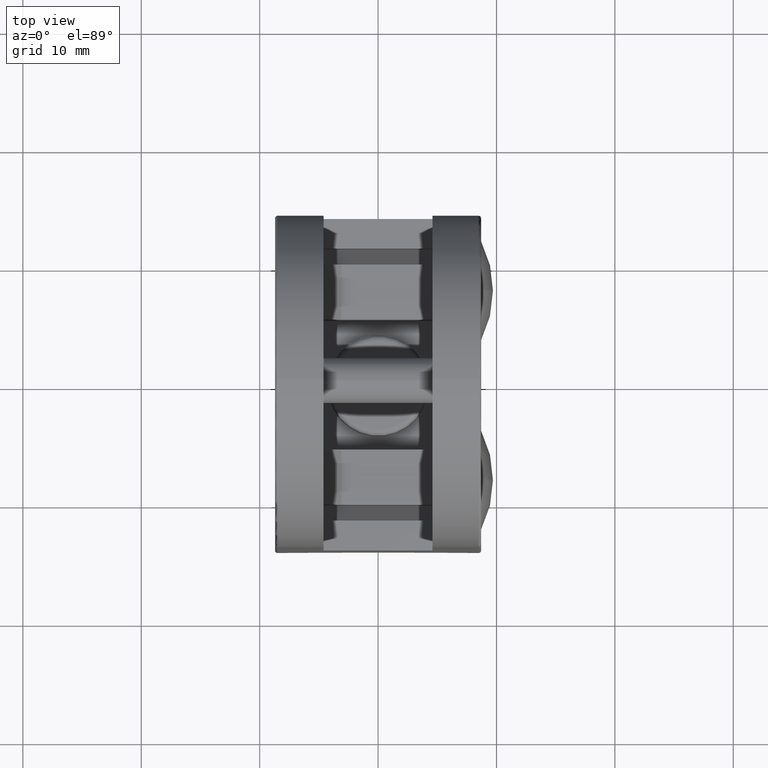
[diagram: clean part render]
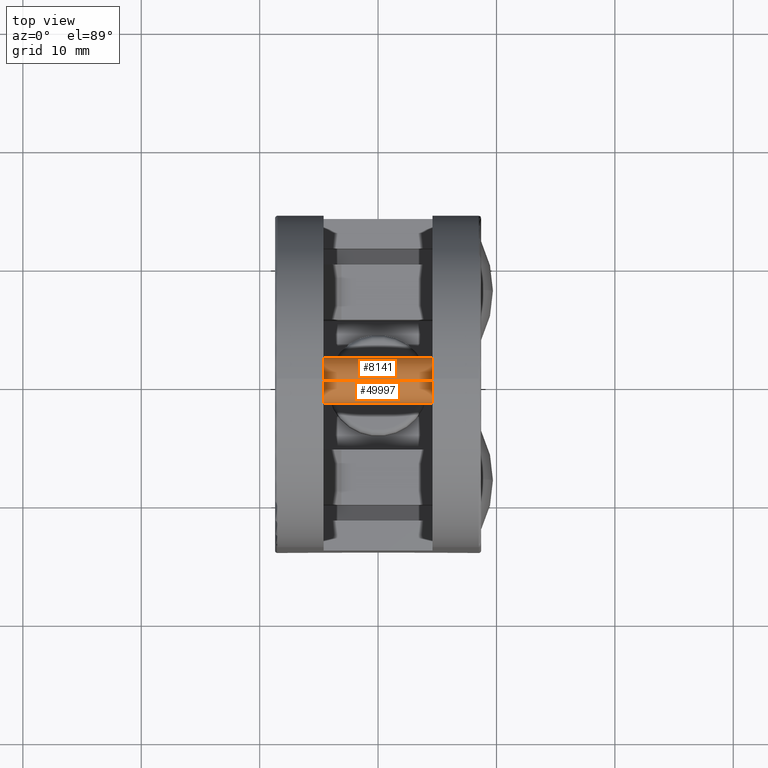
[diagram: same view with one multi-face feature highlighted, each face labeled with its STEP entity id]
A machine part, top view. The highlighted faces form ONE feature: a constant-radius fillet chain: 2 tangent blend faces with common blend radius 1.925 mm. The faces share edges in the B-rep.
Their STEP definitions:
[1] entity #8141 (Cylinder):
#1025 = CARTESIAN_POINT ( 'NONE',  ( 0.0000000000000000000, 0.0000000000000000000, 6.500000000000000000 ) ) ;
#3597 = CARTESIAN_POINT ( 'NONE',  ( 0.0000000000000000000, 0.0000000000000000000, 6.500000000000000000 ) ) ;
#5740 = VECTOR ( 'NONE', #49305, 1000.000000000000000 ) ;
#6263 = DIRECTION ( 'NONE',  ( -1.000000000000000000, 0.0000000000000000000, 0.0000000000000000000 ) ) ;
#7223 = ORIENTED_EDGE ( 'NONE', *, *, #39239, .F. ) ;
#7258 = CIRCLE ( 'NONE', #18873, 1.925000000000000000 ) ;
#8141 = ADVANCED_FACE ( 'NONE', ( #49678 ), #48286, .T. ) ;
#9198 = LINE ( 'NONE', #31994, #5740 ) ;
#9503 = VERTEX_POINT ( 'NONE', #52847 ) ;
#11072 = EDGE_CURVE ( 'NONE', #33201, #9503, #9198, .T. ) ;
#11249 = ORIENTED_EDGE ( 'NONE', *, *, #11072, .F. ) ;
#17028 = CARTESIAN_POINT ( 'NONE',  ( 1.925000000000000000, 2.357445088358654300E-016, -6.500000000000000000 ) ) ;
#18069 = EDGE_CURVE ( 'NONE', #19566, #9503, #32403, .T. ) ;
#18873 = AXIS2_PLACEMENT_3D ( 'NONE', #3597, #21646, #47899 ) ;
#19566 = VERTEX_POINT ( 'NONE', #17028 ) ;
#21646 = DIRECTION ( 'NONE',  ( 0.0000000000000000000, 0.0000000000000000000, 1.000000000000000000 ) ) ;
#21760 = CARTESIAN_POINT ( 'NONE',  ( -1.925000000000000000, 0.0000000000000000000, 6.500000000000000000 ) ) ;
#22467 = CARTESIAN_POINT ( 'NONE',  ( 1.925000000000000000, 2.357445088358654300E-016, 6.500000000000000000 ) ) ;
#27309 = DIRECTION ( 'NONE',  ( -0.0000000000000000000, -0.0000000000000000000, -1.000000000000000000 ) ) ;
#28005 = EDGE_CURVE ( 'NONE', #38290, #19566, #29969, .T. ) ;
#29069 = CARTESIAN_POINT ( 'NONE',  ( 0.0000000000000000000, 0.0000000000000000000, -6.500000000000000000 ) ) ;
#29969 = LINE ( 'NONE', #22467, #52958 ) ;
#31994 = CARTESIAN_POINT ( 'NONE',  ( -1.925000000000000000, 0.0000000000000000000, 6.500000000000000000 ) ) ;
#32287 = DIRECTION ( 'NONE',  ( -0.0000000000000000000, -0.0000000000000000000, -1.000000000000000000 ) ) ;
#32403 = CIRCLE ( 'NONE', #35758, 1.925000000000000000 ) ;
#33201 = VERTEX_POINT ( 'NONE', #21760 ) ;
#35758 = AXIS2_PLACEMENT_3D ( 'NONE', #29069, #56289, #51434 ) ;
#38290 = VERTEX_POINT ( 'NONE', #47051 ) ;
#38489 = AXIS2_PLACEMENT_3D ( 'NONE', #1025, #32287, #6263 ) ;
#39239 = EDGE_CURVE ( 'NONE', #38290, #33201, #7258, .T. ) ;
#45886 = ORIENTED_EDGE ( 'NONE', *, *, #18069, .T. ) ;
#47051 = CARTESIAN_POINT ( 'NONE',  ( 1.925000000000000000, 2.357445088358654300E-016, 6.500000000000000000 ) ) ;
#47899 = DIRECTION ( 'NONE',  ( 1.000000000000000000, 0.0000000000000000000, 0.0000000000000000000 ) ) ;
#48286 = CYLINDRICAL_SURFACE ( 'NONE', #38489, 1.925000000000000000 ) ;
#49166 = EDGE_LOOP ( 'NONE', ( #7223, #50380, #45886, #11249 ) ) ;
#49305 = DIRECTION ( 'NONE',  ( -0.0000000000000000000, -0.0000000000000000000, -1.000000000000000000 ) ) ;
#49678 = FACE_OUTER_BOUND ( 'NONE', #49166, .T. ) ;
#50380 = ORIENTED_EDGE ( 'NONE', *, *, #28005, .T. ) ;
#51434 = DIRECTION ( 'NONE',  ( 1.000000000000000000, 0.0000000000000000000, 0.0000000000000000000 ) ) ;
#52847 = CARTESIAN_POINT ( 'NONE',  ( -1.925000000000000000, 0.0000000000000000000, -6.500000000000000000 ) ) ;
#52958 = VECTOR ( 'NONE', #27309, 1000.000000000000000 ) ;
#56289 = DIRECTION ( 'NONE',  ( 0.0000000000000000000, 0.0000000000000000000, 1.000000000000000000 ) ) ;
[2] entity #49997 (Cylinder):
#1148 = AXIS2_PLACEMENT_3D ( 'NONE', #41608, #42002, #55219 ) ;
#1995 = AXIS2_PLACEMENT_3D ( 'NONE', #45719, #32308, #15000 ) ;
#2787 = ORIENTED_EDGE ( 'NONE', *, *, #32884, .F. ) ;
#4208 = ORIENTED_EDGE ( 'NONE', *, *, #11072, .T. ) ;
#5235 = DIRECTION ( 'NONE',  ( 1.000000000000000000, 0.0000000000000000000, 0.0000000000000000000 ) ) ;
#5740 = VECTOR ( 'NONE', #49305, 1000.000000000000000 ) ;
#5846 = EDGE_CURVE ( 'NONE', #9503, #19566, #44978, .T. ) ;
#6143 = EDGE_LOOP ( 'NONE', ( #24245, #2787, #4208, #17354 ) ) ;
#9198 = LINE ( 'NONE', #31994, #5740 ) ;
#9503 = VERTEX_POINT ( 'NONE', #52847 ) ;
#11072 = EDGE_CURVE ( 'NONE', #33201, #9503, #9198, .T. ) ;
#14150 = DIRECTION ( 'NONE',  ( 0.0000000000000000000, 0.0000000000000000000, 1.000000000000000000 ) ) ;
#14956 = CIRCLE ( 'NONE', #1148, 1.925000000000000000 ) ;
#15000 = DIRECTION ( 'NONE',  ( -1.000000000000000000, 0.0000000000000000000, 0.0000000000000000000 ) ) ;
#17028 = CARTESIAN_POINT ( 'NONE',  ( 1.925000000000000000, 2.357445088358654300E-016, -6.500000000000000000 ) ) ;
#17354 = ORIENTED_EDGE ( 'NONE', *, *, #5846, .T. ) ;
#19566 = VERTEX_POINT ( 'NONE', #17028 ) ;
#21760 = CARTESIAN_POINT ( 'NONE',  ( -1.925000000000000000, 0.0000000000000000000, 6.500000000000000000 ) ) ;
#22467 = CARTESIAN_POINT ( 'NONE',  ( 1.925000000000000000, 2.357445088358654300E-016, 6.500000000000000000 ) ) ;
#23071 = CARTESIAN_POINT ( 'NONE',  ( 0.0000000000000000000, 0.0000000000000000000, -6.500000000000000000 ) ) ;
#24245 = ORIENTED_EDGE ( 'NONE', *, *, #28005, .F. ) ;
#27070 = FACE_OUTER_BOUND ( 'NONE', #6143, .T. ) ;
#27309 = DIRECTION ( 'NONE',  ( -0.0000000000000000000, -0.0000000000000000000, -1.000000000000000000 ) ) ;
#28005 = EDGE_CURVE ( 'NONE', #38290, #19566, #29969, .T. ) ;
#29969 = LINE ( 'NONE', #22467, #52958 ) ;
#31994 = CARTESIAN_POINT ( 'NONE',  ( -1.925000000000000000, 0.0000000000000000000, 6.500000000000000000 ) ) ;
#32308 = DIRECTION ( 'NONE',  ( -0.0000000000000000000, -0.0000000000000000000, -1.000000000000000000 ) ) ;
#32884 = EDGE_CURVE ( 'NONE', #33201, #38290, #14956, .T. ) ;
#33201 = VERTEX_POINT ( 'NONE', #21760 ) ;
#38290 = VERTEX_POINT ( 'NONE', #47051 ) ;
#41608 = CARTESIAN_POINT ( 'NONE',  ( 0.0000000000000000000, 0.0000000000000000000, 6.500000000000000000 ) ) ;
#42002 = DIRECTION ( 'NONE',  ( 0.0000000000000000000, 0.0000000000000000000, 1.000000000000000000 ) ) ;
#44978 = CIRCLE ( 'NONE', #55515, 1.925000000000000000 ) ;
#45719 = CARTESIAN_POINT ( 'NONE',  ( 0.0000000000000000000, 0.0000000000000000000, 6.500000000000000000 ) ) ;
#47051 = CARTESIAN_POINT ( 'NONE',  ( 1.925000000000000000, 2.357445088358654300E-016, 6.500000000000000000 ) ) ;
#49305 = DIRECTION ( 'NONE',  ( -0.0000000000000000000, -0.0000000000000000000, -1.000000000000000000 ) ) ;
#49997 = ADVANCED_FACE ( 'NONE', ( #27070 ), #52078, .T. ) ;
#52078 = CYLINDRICAL_SURFACE ( 'NONE', #1995, 1.925000000000000000 ) ;
#52847 = CARTESIAN_POINT ( 'NONE',  ( -1.925000000000000000, 0.0000000000000000000, -6.500000000000000000 ) ) ;
#52958 = VECTOR ( 'NONE', #27309, 1000.000000000000000 ) ;
#55219 = DIRECTION ( 'NONE',  ( 1.000000000000000000, 0.0000000000000000000, 0.0000000000000000000 ) ) ;
#55515 = AXIS2_PLACEMENT_3D ( 'NONE', #23071, #14150, #5235 ) ;